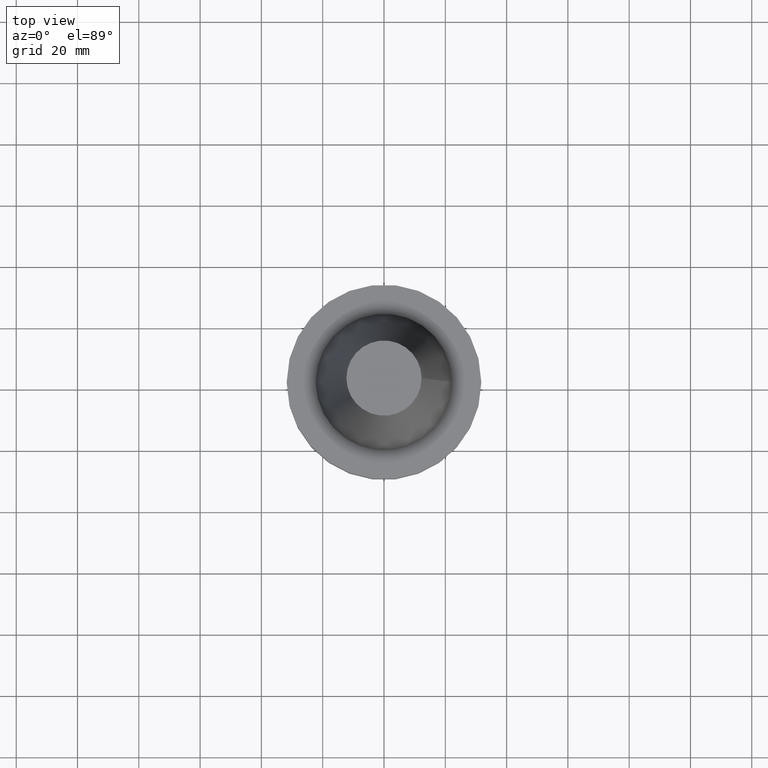
[diagram: clean part render]
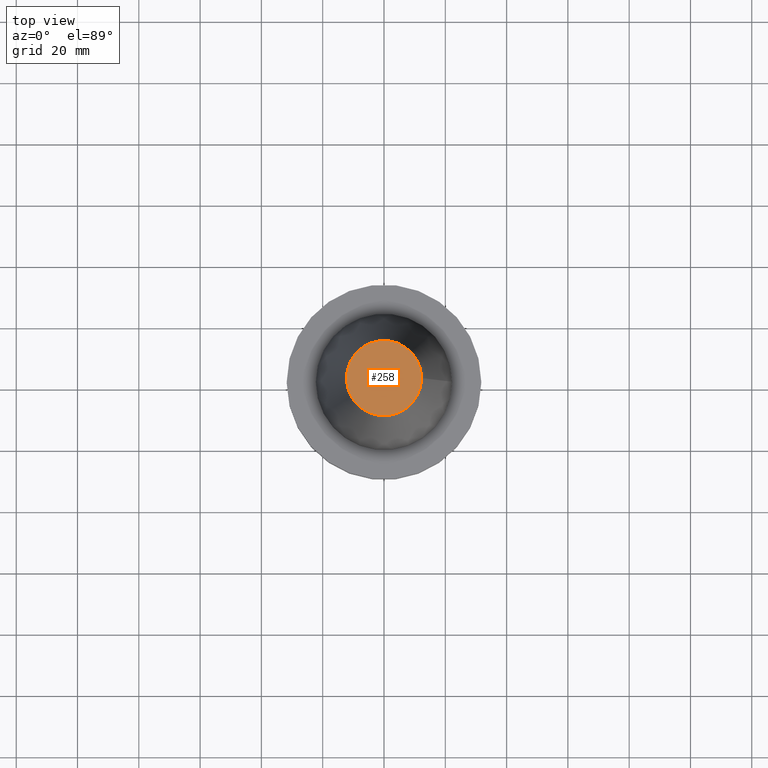
[diagram: same view with one face highlighted and labeled with its STEP entity id]
A machine part, top view. The second image highlights one B-rep face of the part: STEP entity #258.
In plain terms, the highlighted planar face has unit normal (0, 0, -1).
Its self-contained STEP definition (entity closure, byte-faithful):
#4 = CARTESIAN_POINT ( 'NONE',  ( 0.000000000000000000, 0.000000000000000000, 68.25000000000000000 ) ) ;
#30 = DIRECTION ( 'NONE',  ( 1.000000000000000000, 0.000000000000000000, 0.000000000000000000 ) ) ;
#31 = CARTESIAN_POINT ( 'NONE',  ( 0.000000000000000000, 12.27178102086201150, 68.25000000000000000 ) ) ;
#36 = EDGE_LOOP ( 'NONE', ( #99 ) ) ;
#99 = ORIENTED_EDGE ( 'NONE', *, *, #222, .T. ) ;
#150 = DIRECTION ( 'NONE',  ( -1.000000000000000000, 0.000000000000000000, -0.000000000000000000 ) ) ;
#209 = PLANE ( 'NONE',  #245 ) ;
#222 = EDGE_CURVE ( 'NONE', #316, #316, #232, .T. ) ;
#232 = CIRCLE ( 'NONE', #284, 12.27178102086201150 ) ;
#244 = DIRECTION ( 'NONE',  ( 0.000000000000000000, 0.000000000000000000, -1.000000000000000000 ) ) ;
#245 = AXIS2_PLACEMENT_3D ( 'NONE', #31, #244, #150 ) ;
#258 = ADVANCED_FACE ( 'NONE', ( #371 ), #209, .F. ) ;
#284 = AXIS2_PLACEMENT_3D ( 'NONE', #4, #303, #30 ) ;
#303 = DIRECTION ( 'NONE',  ( -0.000000000000000000, -0.000000000000000000, 1.000000000000000000 ) ) ;
#316 = VERTEX_POINT ( 'NONE', #350 ) ;
#350 = CARTESIAN_POINT ( 'NONE',  ( 12.27178102086201150, 0.000000000000000000, 68.25000000000000000 ) ) ;
#371 = FACE_OUTER_BOUND ( 'NONE', #36, .T. ) ;